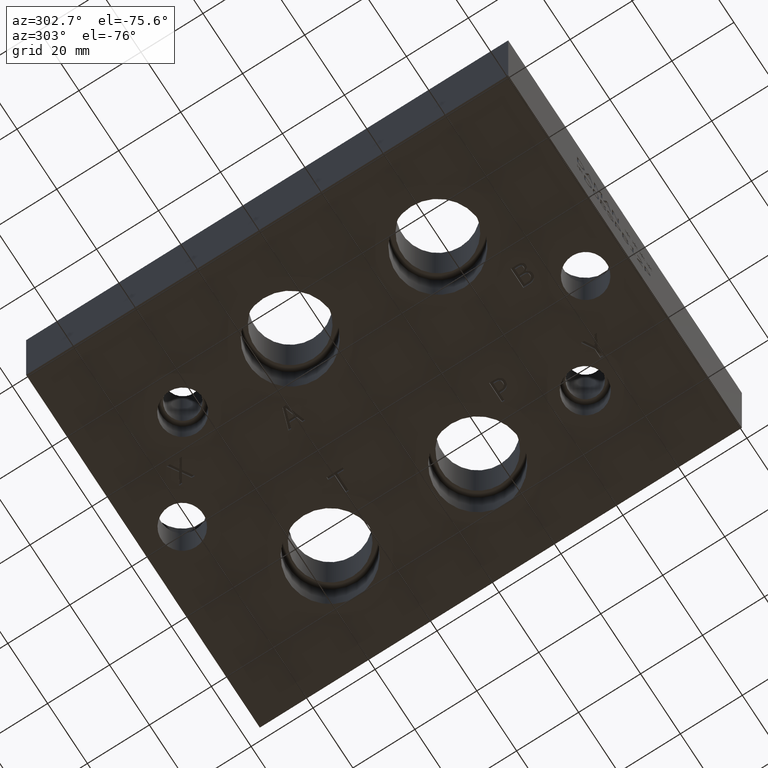
[diagram: clean part render]
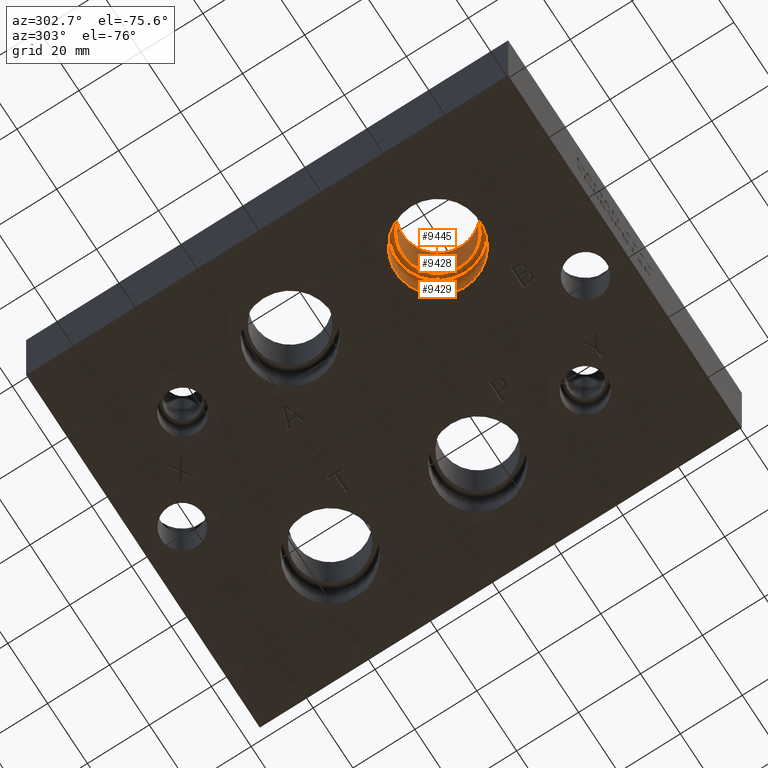
[diagram: same view with one multi-face feature highlighted, each face labeled with its STEP entity id]
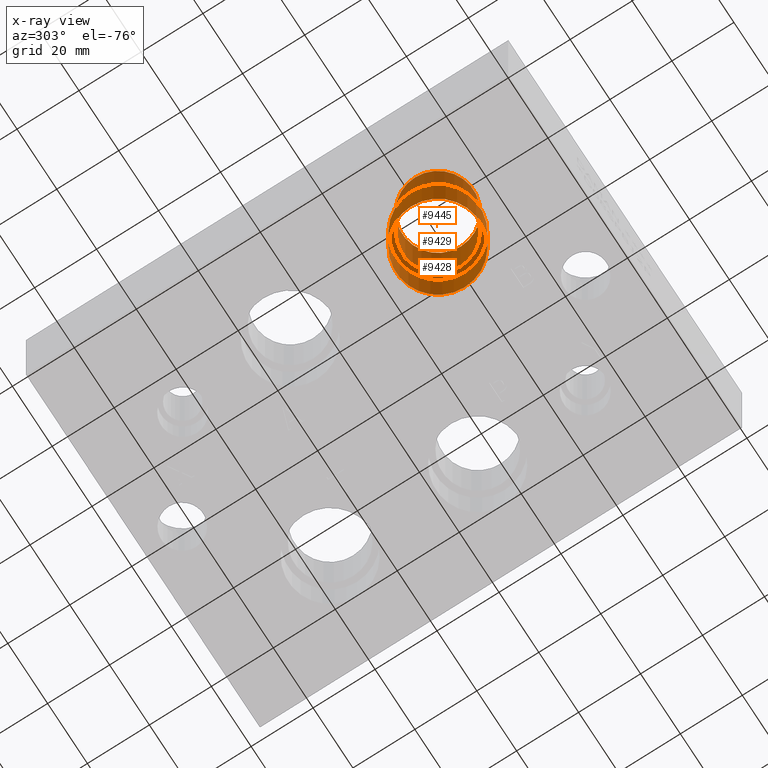
[diagram: x-ray of the same camera — body ghosted, the whole feature saturated]
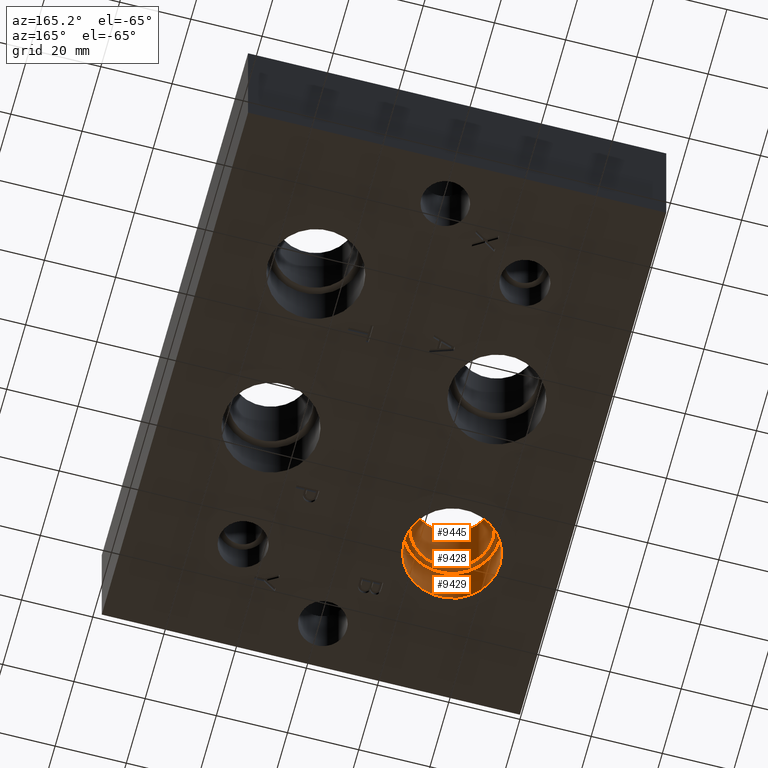
[diagram: same view with one multi-face feature highlighted, each face labeled with its STEP entity id]
A machine part, auxiliary view. The highlighted faces form ONE feature: a stepped (counterbored) hole: 2 coaxial cylindrical walls of radii 11.5062 -> 13.462 mm joined by 1 annular planar shoulder face(s). The faces share edges in the B-rep.
The next image is the same camera in x-ray: the body ghosted and the whole hole feature saturated, so the bore chain is visible through the body.
A second angle (auxiliary view) of the same feature is appended — it is thin or edge-on in the first view.
Their STEP definitions:
[1] entity #9429 (Cylinder):
#25=CYLINDRICAL_SURFACE('',#9820,13.462);
#58=CIRCLE('',#9737,13.462);
#59=CIRCLE('',#9738,13.462);
#75=CIRCLE('',#9817,13.462);
#76=CIRCLE('',#9818,13.462);
#974=FACE_OUTER_BOUND('',#1504,.T.);
#1504=EDGE_LOOP('',(#8207,#8208,#8209,#8210,#8211,#8212));
#2477=LINE('',#15845,#3413);
#3413=VECTOR('',#11501,13.462);
#4404=VERTEX_POINT('',#15420);
#4405=VERTEX_POINT('',#15421);
#4496=VERTEX_POINT('',#15838);
#4497=VERTEX_POINT('',#15839);
#5609=EDGE_CURVE('',#4404,#4405,#58,.T.);
#5610=EDGE_CURVE('',#4405,#4404,#59,.T.);
#5760=EDGE_CURVE('',#4496,#4497,#75,.T.);
#5761=EDGE_CURVE('',#4497,#4496,#76,.T.);
#5763=EDGE_CURVE('',#4405,#4497,#2477,.T.);
#8207=ORIENTED_EDGE('',*,*,#5609,.F.);
#8208=ORIENTED_EDGE('',*,*,#5610,.F.);
#8209=ORIENTED_EDGE('',*,*,#5763,.T.);
#8210=ORIENTED_EDGE('',*,*,#5760,.F.);
#8211=ORIENTED_EDGE('',*,*,#5761,.F.);
#8212=ORIENTED_EDGE('',*,*,#5763,.F.);
#9429=ADVANCED_FACE('',(#974),#25,.F.);
#9737=AXIS2_PLACEMENT_3D('',#15422,#11215,#11216);
#9738=AXIS2_PLACEMENT_3D('',#15423,#11217,#11218);
#9817=AXIS2_PLACEMENT_3D('',#15840,#11493,#11494);
#9818=AXIS2_PLACEMENT_3D('',#15841,#11495,#11496);
#9820=AXIS2_PLACEMENT_3D('',#15844,#11499,#11500);
#11215=DIRECTION('center_axis',(0.,0.,1.));
#11216=DIRECTION('ref_axis',(1.,0.,0.));
#11217=DIRECTION('center_axis',(0.,0.,1.));
#11218=DIRECTION('ref_axis',(1.,0.,0.));
#11493=DIRECTION('center_axis',(0.,0.,-1.));
#11494=DIRECTION('ref_axis',(1.,0.,0.));
#11495=DIRECTION('center_axis',(0.,0.,-1.));
#11496=DIRECTION('ref_axis',(1.,0.,0.));
#11499=DIRECTION('center_axis',(0.,0.,-1.));
#11500=DIRECTION('ref_axis',(1.,0.,0.));
#11501=DIRECTION('',(0.,0.,1.));
#15420=CARTESIAN_POINT('',(43.6372,42.0624,0.));
#15421=CARTESIAN_POINT('',(16.7132,42.0624,1.11022302462516E-15));
#15422=CARTESIAN_POINT('Origin',(30.1752,42.0624,0.));
#15423=CARTESIAN_POINT('Origin',(30.1752,42.0624,0.));
#15838=CARTESIAN_POINT('',(43.6372,42.0624,15.8496));
#15839=CARTESIAN_POINT('',(16.7132,42.0624,15.8496));
#15840=CARTESIAN_POINT('Origin',(30.1752,42.0624,15.8496));
#15841=CARTESIAN_POINT('Origin',(30.1752,42.0624,15.8496));
#15844=CARTESIAN_POINT('Origin',(30.1752,42.0624,7.9248));
#15845=CARTESIAN_POINT('',(16.7132,42.0624,7.9248));
[2] entity #9445 (Cylinder):
#37=CYLINDRICAL_SURFACE('',#9862,11.5062);
#77=CIRCLE('',#9819,11.5062);
#104=CIRCLE('',#9863,11.5062);
#105=CIRCLE('',#9864,11.5062);
#990=FACE_OUTER_BOUND('',#1524,.T.);
#1524=EDGE_LOOP('',(#8282,#8283,#8284,#8285,#8286));
#2489=LINE('',#15929,#3425);
#3425=VECTOR('',#11601,11.5062);
#4498=VERTEX_POINT('',#15842);
#4525=VERTEX_POINT('',#15925);
#4526=VERTEX_POINT('',#15926);
#5762=EDGE_CURVE('',#4498,#4498,#77,.T.);
#5801=EDGE_CURVE('',#4525,#4526,#104,.T.);
#5802=EDGE_CURVE('',#4526,#4525,#105,.T.);
#5803=EDGE_CURVE('',#4526,#4498,#2489,.T.);
#8282=ORIENTED_EDGE('',*,*,#5801,.F.);
#8283=ORIENTED_EDGE('',*,*,#5802,.F.);
#8284=ORIENTED_EDGE('',*,*,#5803,.T.);
#8285=ORIENTED_EDGE('',*,*,#5762,.T.);
#8286=ORIENTED_EDGE('',*,*,#5803,.F.);
#9445=ADVANCED_FACE('',(#990),#37,.F.);
#9819=AXIS2_PLACEMENT_3D('',#15843,#11497,#11498);
#9862=AXIS2_PLACEMENT_3D('',#15924,#11595,#11596);
#9863=AXIS2_PLACEMENT_3D('',#15927,#11597,#11598);
#9864=AXIS2_PLACEMENT_3D('',#15928,#11599,#11600);
#11497=DIRECTION('center_axis',(0.,0.,-1.));
#11498=DIRECTION('ref_axis',(1.,0.,0.));
#11595=DIRECTION('center_axis',(0.,0.,1.));
#11596=DIRECTION('ref_axis',(1.,0.,0.));
#11597=DIRECTION('center_axis',(0.,0.,-1.));
#11598=DIRECTION('ref_axis',(1.,0.,0.));
#11599=DIRECTION('center_axis',(0.,0.,-1.));
#11600=DIRECTION('ref_axis',(1.,0.,0.));
#11601=DIRECTION('',(0.,0.,-1.));
#15842=CARTESIAN_POINT('',(18.669,42.0624,15.8496));
#15843=CARTESIAN_POINT('Origin',(30.1752,42.0624,15.8496));
#15924=CARTESIAN_POINT('Origin',(30.1752,42.0624,-160.534252459137));
#15925=CARTESIAN_POINT('',(41.6814,42.0624,38.1));
#15926=CARTESIAN_POINT('',(18.669,42.0624,38.1));
#15927=CARTESIAN_POINT('Origin',(30.1752,42.0624,38.1));
#15928=CARTESIAN_POINT('Origin',(30.1752,42.0624,38.1));
#15929=CARTESIAN_POINT('',(18.669,42.0624,-160.534252459137));
[3] entity #9428 (Plane):
#75=CIRCLE('',#9817,13.462);
#76=CIRCLE('',#9818,13.462);
#77=CIRCLE('',#9819,11.5062);
#207=FACE_BOUND('',#1503,.T.);
#530=PLANE('',#9816);
#973=FACE_OUTER_BOUND('',#1502,.T.);
#1502=EDGE_LOOP('',(#8204,#8205));
#1503=EDGE_LOOP('',(#8206));
#4496=VERTEX_POINT('',#15838);
#4497=VERTEX_POINT('',#15839);
#4498=VERTEX_POINT('',#15842);
#5760=EDGE_CURVE('',#4496,#4497,#75,.T.);
#5761=EDGE_CURVE('',#4497,#4496,#76,.T.);
#5762=EDGE_CURVE('',#4498,#4498,#77,.T.);
#8204=ORIENTED_EDGE('',*,*,#5760,.T.);
#8205=ORIENTED_EDGE('',*,*,#5761,.T.);
#8206=ORIENTED_EDGE('',*,*,#5762,.F.);
#9428=ADVANCED_FACE('',(#973,#207),#530,.T.);
#9816=AXIS2_PLACEMENT_3D('',#15837,#11491,#11492);
#9817=AXIS2_PLACEMENT_3D('',#15840,#11493,#11494);
#9818=AXIS2_PLACEMENT_3D('',#15841,#11495,#11496);
#9819=AXIS2_PLACEMENT_3D('',#15843,#11497,#11498);
#11491=DIRECTION('center_axis',(0.,0.,-1.));
#11492=DIRECTION('ref_axis',(1.,0.,0.));
#11493=DIRECTION('center_axis',(0.,0.,-1.));
#11494=DIRECTION('ref_axis',(1.,0.,0.));
#11495=DIRECTION('center_axis',(0.,0.,-1.));
#11496=DIRECTION('ref_axis',(1.,0.,0.));
#11497=DIRECTION('center_axis',(0.,0.,-1.));
#11498=DIRECTION('ref_axis',(1.,0.,0.));
#15837=CARTESIAN_POINT('Origin',(30.1752,42.0624,15.8496));
#15838=CARTESIAN_POINT('',(43.6372,42.0624,15.8496));
#15839=CARTESIAN_POINT('',(16.7132,42.0624,15.8496));
#15840=CARTESIAN_POINT('Origin',(30.1752,42.0624,15.8496));
#15841=CARTESIAN_POINT('Origin',(30.1752,42.0624,15.8496));
#15842=CARTESIAN_POINT('',(18.669,42.0624,15.8496));
#15843=CARTESIAN_POINT('Origin',(30.1752,42.0624,15.8496));